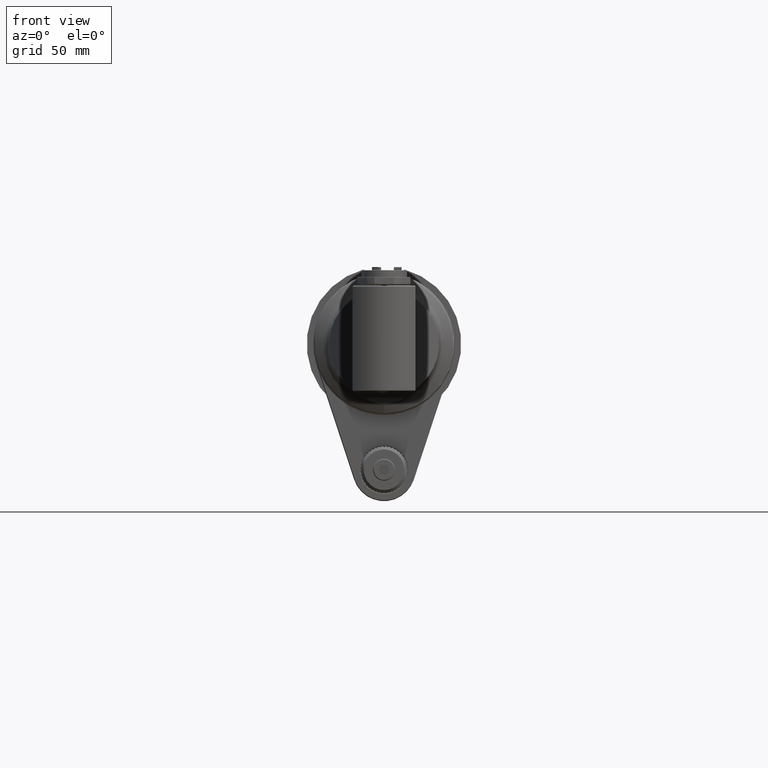
[diagram: clean part render]
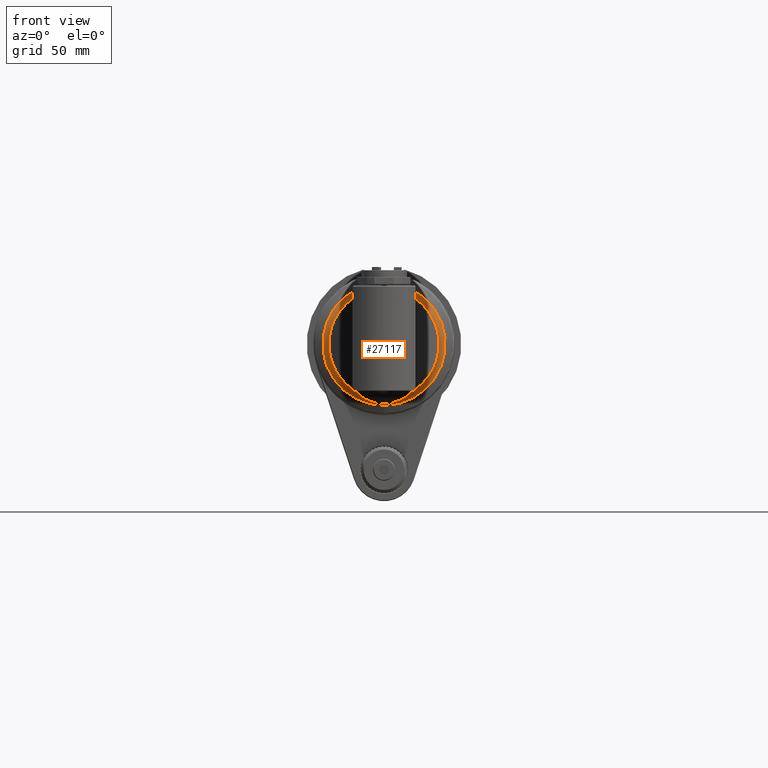
[diagram: same view with one face highlighted and labeled with its STEP entity id]
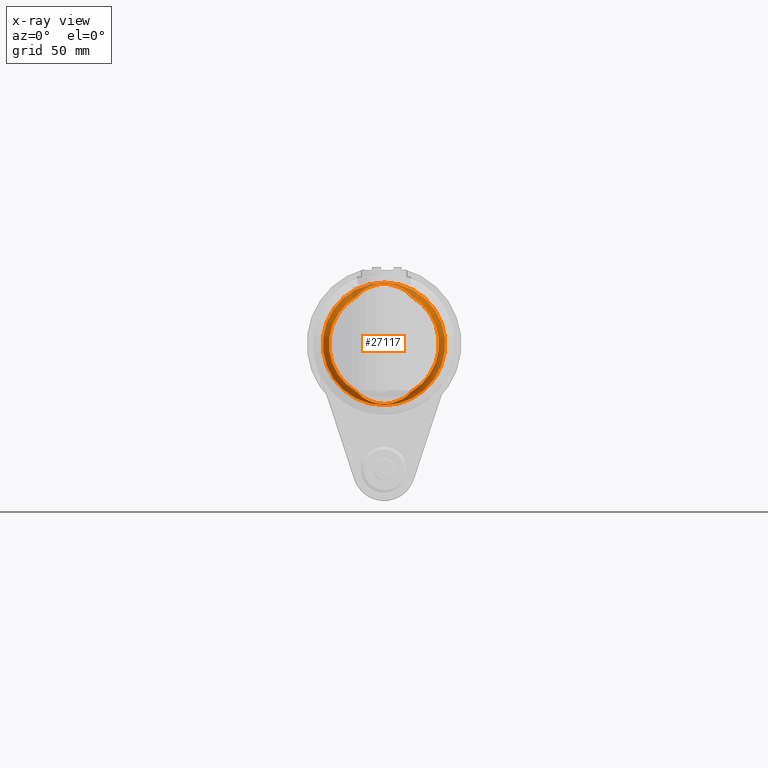
[diagram: x-ray of the same camera — body ghosted, the highlighted face saturated]
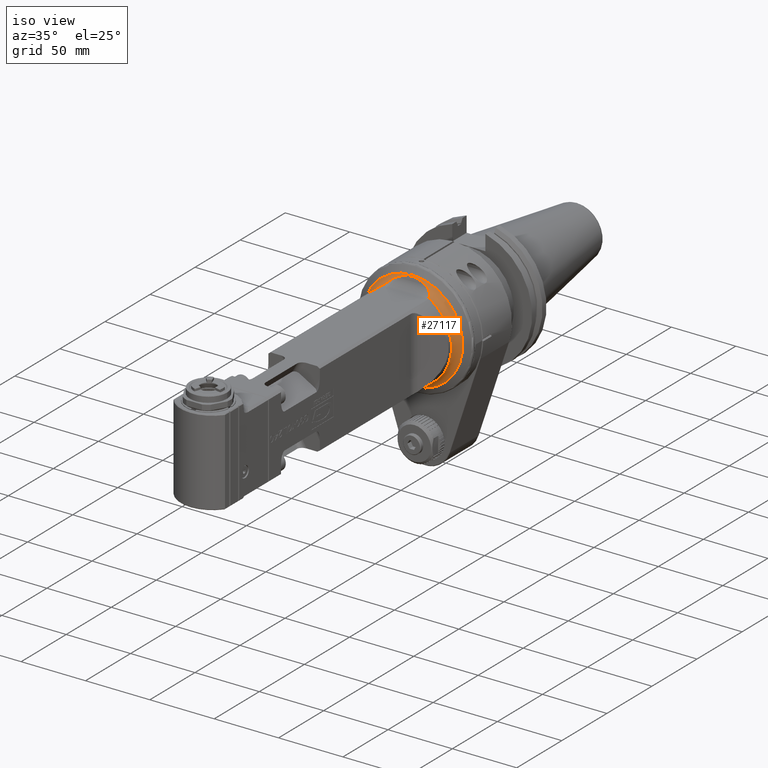
[diagram: same view with one face highlighted and labeled with its STEP entity id]
A machine part, front view. The second image highlights one B-rep face of the part: STEP entity #27117.
The next image is the same camera in x-ray: the body ghosted, the highlighted face saturated — about 12% of this face is hidden behind the body in this view.
A second angle (iso view) of the same face is appended — the face is thin or edge-on in the first view.
In plain terms, the highlighted toroidal blend (fillet) surface has major radius 43 mm and minor (blend) radius 8 mm.
Its self-contained STEP definition (entity closure, byte-faithful):
#110=TOROIDAL_SURFACE('',#29246,43.,8.);
#1206=CIRCLE('',#29244,39.);
#1207=CIRCLE('',#29245,39.);
#1208=CIRCLE('',#29247,8.);
#1209=CIRCLE('',#29248,35.);
#1210=CIRCLE('',#29249,35.);
#1723=B_SPLINE_CURVE_WITH_KNOTS('',3,(#43073,#43074,#43075,#43076,#43077,
#43078,#43079,#43080,#43081,#43082,#43083,#43084),.UNSPECIFIED.,.F.,.F.,
(4,2,2,2,2,4),(-13.7378022038327,-13.6980223017479,-13.2930273056113,-12.8880323094747,
-12.6407192186863,-12.5778600971058),.UNSPECIFIED.);
#1724=B_SPLINE_CURVE_WITH_KNOTS('',3,(#43087,#43088,#43089,#43090,#43091,
#43092,#43093,#43094,#43095,#43096),.UNSPECIFIED.,.F.,.F.,(4,2,2,2,4),(-14.8181845063887,
-14.7553253848095,-14.5080122940211,-14.1030172978845,-13.7378022038327),
 .UNSPECIFIED.);
#1725=B_SPLINE_CURVE_WITH_KNOTS('',3,(#43098,#43099,#43100,#43101,#43102,
#43103,#43104,#43105,#43106,#43107,#43108,#43109,#43110,#43111,#43112,#43113,
#43114,#43115,#43116,#43117,#43118,#43119,#43120,#43121,#43122,#43123,#43124,
#43125,#43126,#43127,#43128,#43129,#43130,#43131,#43132,#43133,#43134,#43135,
#43136,#43137,#43138,#43139,#43140,#43141,#43142,#43143,#43144,#43145,#43146,
#43147,#43148,#43149,#43150,#43151,#43152,#43153,#43154,#43155,#43156,#43157,
#43158,#43159,#43160,#43161,#43162,#43163,#43164,#43165,#43166,#43167,#43168,
#43169,#43170,#43171,#43172,#43173),.UNSPECIFIED.,.F.,.F.,(4,3,3,3,3,3,
3,3,3,3,3,3,3,3,3,3,3,3,3,3,3,3,3,3,3,4),(0.,0.04166666666667,0.08333333333333,
0.125,0.1666666666667,0.2083333333333,0.25,0.2916666666667,0.3333333333333,
0.375,0.4166666666667,0.4583333333333,0.5,0.5416666666667,0.5833333333333,
0.625,0.6666666666667,0.7083333333333,0.75,0.7916666666667,0.8333333333333,
0.875,0.9166666666667,0.95557840806874,0.9583333333333,1.),
 .UNSPECIFIED.);
#1726=B_SPLINE_CURVE_WITH_KNOTS('',3,(#43177,#43178,#43179,#43180,#43181,
#43182,#43183,#43184,#43185,#43186,#43187,#43188,#43189,#43190,#43191,#43192,
#43193,#43194,#43195,#43196,#43197,#43198,#43199,#43200,#43201,#43202,#43203,
#43204,#43205,#43206,#43207,#43208,#43209,#43210,#43211,#43212,#43213,#43214,
#43215,#43216,#43217,#43218,#43219,#43220,#43221,#43222,#43223,#43224,#43225,
#43226,#43227,#43228,#43229,#43230,#43231,#43232,#43233,#43234,#43235,#43236,
#43237,#43238,#43239,#43240,#43241,#43242,#43243,#43244,#43245,#43246,#43247,
#43248,#43249,#43250,#43251,#43252),.UNSPECIFIED.,.F.,.F.,(4,3,3,3,3,3,
3,3,3,3,3,3,3,3,3,3,3,3,3,3,3,3,3,3,3,4),(0.,0.04166666666667,0.0804342178607859,
0.08333333333333,0.125,0.1666666666667,0.2083333333333,0.25,0.2916666666667,
0.3333333333333,0.375,0.4166666666667,0.4583333333333,0.5,0.5416666666667,
0.5833333333333,0.625,0.6666666666667,0.7083333333333,0.75,0.7916666666667,
0.8333333333333,0.875,0.9166666666667,0.9583333333333,1.),.UNSPECIFIED.);
#1727=B_SPLINE_CURVE_WITH_KNOTS('',3,(#43254,#43255,#43256,#43257,#43258,
#43259,#43260,#43261,#43262,#43263,#43264,#43265,#43266,#43267,#43268,#43269,
#43270,#43271),.UNSPECIFIED.,.F.,.F.,(4,2,2,2,2,2,2,2,4),(12.5778600971084,
12.640719218692,12.8880323094802,13.2930273056156,13.698022301751,14.1030172978864,
14.5080122940217,14.75532538481,14.8181845063923),.UNSPECIFIED.);
#1728=B_SPLINE_CURVE_WITH_KNOTS('',3,(#43273,#43274,#43275,#43276,#43277,
#43278,#43279,#43280,#43281,#43282,#43283,#43284,#43285,#43286,#43287,#43288,
#43289,#43290,#43291,#43292,#43293,#43294,#43295,#43296,#43297,#43298,#43299,
#43300,#43301,#43302,#43303,#43304,#43305,#43306,#43307,#43308,#43309,#43310,
#43311,#43312,#43313,#43314,#43315,#43316,#43317,#43318,#43319,#43320,#43321,
#43322,#43323,#43324,#43325,#43326,#43327,#43328,#43329,#43330,#43331,#43332,
#43333,#43334,#43335,#43336,#43337,#43338,#43339,#43340,#43341,#43342,#43343,
#43344,#43345,#43346,#43347,#43348,#43349,#43350,#43351),.UNSPECIFIED.,
 .F.,.F.,(4,3,3,3,3,3,3,3,3,3,3,3,3,3,3,3,3,3,3,3,3,3,3,3,3,3,4),(0.,0.04166666666667,
0.08333333333333,0.125,0.1666666666667,0.2083333333333,0.25,0.2916666666667,
0.3333333333333,0.375,0.4166666666667,0.4583333333333,0.5,0.5416666666667,
0.5833333333333,0.625,0.6666666666667,0.7083333333333,0.75,0.789126732267477,
0.7916666666667,0.8333333333333,0.875,0.9166666666667,0.954957464717606,
0.9583333333333,1.),.UNSPECIFIED.);
#1729=B_SPLINE_CURVE_WITH_KNOTS('',3,(#43354,#43355,#43356,#43357,#43358,
#43359,#43360,#43361,#43362,#43363,#43364,#43365,#43366,#43367,#43368,#43369,
#43370,#43371,#43372,#43373,#43374,#43375,#43376,#43377,#43378,#43379,#43380,
#43381,#43382,#43383,#43384,#43385,#43386,#43387,#43388,#43389,#43390,#43391,
#43392,#43393,#43394,#43395,#43396,#43397,#43398,#43399,#43400,#43401,#43402,
#43403,#43404,#43405,#43406,#43407,#43408,#43409,#43410,#43411,#43412,#43413,
#43414,#43415,#43416,#43417,#43418,#43419,#43420,#43421,#43422,#43423,#43424,
#43425,#43426,#43427,#43428,#43429),.UNSPECIFIED.,.F.,.F.,(4,3,3,3,3,3,
3,3,3,3,3,3,3,3,3,3,3,3,3,3,3,3,3,3,3,4),(0.,0.04166666666667,0.0805791188444732,
0.08333333333333,0.125,0.1666666666667,0.2083333333333,0.25,0.2916666666667,
0.3333333333333,0.375,0.4166666666667,0.4583333333333,0.5,0.5416666666667,
0.5833333333333,0.625,0.6666666666667,0.7083333333333,0.75,0.7916666666667,
0.8333333333333,0.875,0.9166666666667,0.9583333333333,1.),.UNSPECIFIED.);
#2736=FACE_OUTER_BOUND('',#4355,.T.);
#4355=EDGE_LOOP('',(#20257,#20258,#20259,#20260,#20261,#20262,#20263,#20264,
#20265,#20266,#20267,#20268,#20269));
#11665=VERTEX_POINT('',#43065);
#11666=VERTEX_POINT('',#43067);
#11667=VERTEX_POINT('',#43071);
#11668=VERTEX_POINT('',#43072);
#11669=VERTEX_POINT('',#43086);
#11670=VERTEX_POINT('',#43097);
#11671=VERTEX_POINT('',#43174);
#11672=VERTEX_POINT('',#43176);
#11673=VERTEX_POINT('',#43253);
#11674=VERTEX_POINT('',#43272);
#11675=VERTEX_POINT('',#43352);
#14808=EDGE_CURVE('',#11666,#11665,#1206,.T.);
#14809=EDGE_CURVE('',#11665,#11666,#1207,.T.);
#14810=EDGE_CURVE('',#11667,#11668,#1723,.F.);
#14811=EDGE_CURVE('',#11668,#11666,#1208,.T.);
#14812=EDGE_CURVE('',#11668,#11669,#1724,.F.);
#14813=EDGE_CURVE('',#11669,#11670,#1725,.T.);
#14814=EDGE_CURVE('',#11671,#11670,#1209,.T.);
#14815=EDGE_CURVE('',#11671,#11672,#1726,.T.);
#14816=EDGE_CURVE('',#11672,#11673,#1727,.T.);
#14817=EDGE_CURVE('',#11673,#11674,#1728,.T.);
#14818=EDGE_CURVE('',#11675,#11674,#1210,.T.);
#14819=EDGE_CURVE('',#11675,#11667,#1729,.T.);
#20257=ORIENTED_EDGE('',*,*,#14810,.T.);
#20258=ORIENTED_EDGE('',*,*,#14811,.T.);
#20259=ORIENTED_EDGE('',*,*,#14808,.T.);
#20260=ORIENTED_EDGE('',*,*,#14809,.T.);
#20261=ORIENTED_EDGE('',*,*,#14811,.F.);
#20262=ORIENTED_EDGE('',*,*,#14812,.T.);
#20263=ORIENTED_EDGE('',*,*,#14813,.T.);
#20264=ORIENTED_EDGE('',*,*,#14814,.F.);
#20265=ORIENTED_EDGE('',*,*,#14815,.T.);
#20266=ORIENTED_EDGE('',*,*,#14816,.T.);
#20267=ORIENTED_EDGE('',*,*,#14817,.T.);
#20268=ORIENTED_EDGE('',*,*,#14818,.F.);
#20269=ORIENTED_EDGE('',*,*,#14819,.T.);
#27117=ADVANCED_FACE('',(#2736),#110,.F.);
#29244=AXIS2_PLACEMENT_3D('',#43068,#33656,#33657);
#29245=AXIS2_PLACEMENT_3D('',#43069,#33658,#33659);
#29246=AXIS2_PLACEMENT_3D('',#43070,#33660,#33661);
#29247=AXIS2_PLACEMENT_3D('',#43085,#33662,#33663);
#29248=AXIS2_PLACEMENT_3D('',#43175,#33664,#33665);
#29249=AXIS2_PLACEMENT_3D('',#43353,#33666,#33667);
#33656=DIRECTION('center_axis',(0.,1.,0.));
#33657=DIRECTION('ref_axis',(-1.,0.,0.));
#33658=DIRECTION('center_axis',(0.,1.,0.));
#33659=DIRECTION('ref_axis',(-1.,0.,0.));
#33660=DIRECTION('center_axis',(0.,1.,0.));
#33661=DIRECTION('ref_axis',(0.999945003641186,0.,0.0104875971046199));
#33662=DIRECTION('center_axis',(0.0104875971046197,0.,-0.999945003641186));
#33663=DIRECTION('ref_axis',(-0.999945003641186,0.,-0.0104875971046197));
#33664=DIRECTION('center_axis',(0.,1.,0.));
#33665=DIRECTION('ref_axis',(0.865703462490004,0.,-0.500557204555902));
#33666=DIRECTION('center_axis',(0.,1.,0.));
#33667=DIRECTION('ref_axis',(-0.865703462490004,0.,0.500557204555902));
#43065=CARTESIAN_POINT('',(38.9999999999974,38.4641016151356,4.77612251667436E-15));
#43067=CARTESIAN_POINT('',(-38.9978551420063,38.46410161514,-0.409016287080169));
#43068=CARTESIAN_POINT('Origin',(0.,38.46410161514,0.));
#43069=CARTESIAN_POINT('Origin',(0.,38.46410161514,0.));
#43070=CARTESIAN_POINT('Origin',(0.,45.39230484541,0.));
#43071=CARTESIAN_POINT('',(-35.26383885339,40.04367285338,11.36788069341));
#43072=CARTESIAN_POINT('',(-38.2413415089381,38.9599505143173,-0.401081840526887));
#43073=CARTESIAN_POINT('Ctrl Pts',(-38.2413415089381,38.9599505143173,-0.401081840527046));
#43074=CARTESIAN_POINT('Ctrl Pts',(-38.2441246155634,38.9589375463469,-0.266341423830267));
#43075=CARTESIAN_POINT('Ctrl Pts',(-38.2454847436221,38.9584425002188,-0.132599673616175));
#43076=CARTESIAN_POINT('Ctrl Pts',(-38.2454847436221,38.9584425002188,1.34998332045535));
#43077=CARTESIAN_POINT('Ctrl Pts',(-38.0909820629314,39.0146768771045,2.81798982273538));
#43078=CARTESIAN_POINT('Ctrl Pts',(-37.4896495701843,39.2335440053616,5.69207543368899));
#43079=CARTESIAN_POINT('Ctrl Pts',(-37.0504436962752,39.3934018701794,7.09995497122563));
#43080=CARTESIAN_POINT('Ctrl Pts',(-36.2869596295705,39.6712873447964,9.11681253003508));
#43081=CARTESIAN_POINT('Ctrl Pts',(-35.9382018007334,39.7982248134605,9.9435818588829));
#43082=CARTESIAN_POINT('Ctrl Pts',(-35.4619060514545,39.9715822889055,10.9600495702855));
#43083=CARTESIAN_POINT('Ctrl Pts',(-35.3634834504906,40.0074051860354,11.1650514609152));
#43084=CARTESIAN_POINT('Ctrl Pts',(-35.2638388533836,40.0436728533878,11.3678806934175));
#43085=CARTESIAN_POINT('Origin',(-42.997635156571,45.39230484541,-0.450966675498648));
#43086=CARTESIAN_POINT('',(-35.26383885339,40.04367285338,-11.36788069341));
#43087=CARTESIAN_POINT('Ctrl Pts',(-35.2638388533896,40.0436728533856,-11.3678806934053));
#43088=CARTESIAN_POINT('Ctrl Pts',(-35.3634834504946,40.007405186034,-11.165051460907));
#43089=CARTESIAN_POINT('Ctrl Pts',(-35.4619060514564,39.9715822889048,-10.9600495702814));
#43090=CARTESIAN_POINT('Ctrl Pts',(-35.9382018007334,39.7982248134605,-9.9435818588829));
#43091=CARTESIAN_POINT('Ctrl Pts',(-36.2869596295705,39.6712873447964,-9.11681253003508));
#43092=CARTESIAN_POINT('Ctrl Pts',(-37.0504436962752,39.3934018701794,-7.09995497122563));
#43093=CARTESIAN_POINT('Ctrl Pts',(-37.4896495701843,39.2335440053616,-5.69207543368899));
#43094=CARTESIAN_POINT('Ctrl Pts',(-38.061449663877,39.0254257913068,-2.95914075704057));
#43095=CARTESIAN_POINT('Ctrl Pts',(-38.2157900999439,38.9692504666347,-1.63811942426772));
#43096=CARTESIAN_POINT('Ctrl Pts',(-38.2413415089381,38.9599505143173,-0.401081840527046));
#43097=CARTESIAN_POINT('',(-30.29962118715,45.39230484541,-17.51950215946));
#43098=CARTESIAN_POINT('Ctrl Pts',(-35.2638388533917,40.0436728533816,-11.3678806934105));
#43099=CARTESIAN_POINT('Ctrl Pts',(-35.18904577304,40.07089530836,-11.52012400137));
#43100=CARTESIAN_POINT('Ctrl Pts',(-35.1138103405742,40.0995480447008,-11.6669347504388));
#43101=CARTESIAN_POINT('Ctrl Pts',(-35.0385230093969,40.1295481898045,-11.808283002059));
#43102=CARTESIAN_POINT('Ctrl Pts',(-34.9632356782196,40.1595483349081,-11.9496312536792));
#43103=CARTESIAN_POINT('Ctrl Pts',(-34.8878975485239,40.1908969065948,-12.0855173765078));
#43104=CARTESIAN_POINT('Ctrl Pts',(-34.8125372282882,40.2236337636182,-12.2165789244799));
#43105=CARTESIAN_POINT('Ctrl Pts',(-34.7371769080525,40.2563706206415,-12.347640472452));
#43106=CARTESIAN_POINT('Ctrl Pts',(-34.6617940365719,40.2904954488441,-12.4738773137666));
#43107=CARTESIAN_POINT('Ctrl Pts',(-34.5863538669918,40.3260897655436,-12.5959111226894));
#43108=CARTESIAN_POINT('Ctrl Pts',(-34.5109136974117,40.3616840822431,-12.7179449316123));
#43109=CARTESIAN_POINT('Ctrl Pts',(-34.4354158077517,40.398747516227,-12.8357755563637));
#43110=CARTESIAN_POINT('Ctrl Pts',(-34.3599050800852,40.4373308213293,-12.9498199062475));
#43111=CARTESIAN_POINT('Ctrl Pts',(-34.284394352419,40.4759141264315,-13.063864256131));
#43112=CARTESIAN_POINT('Ctrl Pts',(-34.2088705765836,40.5160171268097,-13.1741222514495));
#43113=CARTESIAN_POINT('Ctrl Pts',(-34.1332670345877,40.5577592310929,-13.2811152319705));
#43114=CARTESIAN_POINT('Ctrl Pts',(-34.0576634925917,40.5995013353762,-13.3881082124917));
#43115=CARTESIAN_POINT('Ctrl Pts',(-33.9819797509665,40.6428821902793,-13.4918360097537));
#43116=CARTESIAN_POINT('Ctrl Pts',(-33.9061494859549,40.688049485195,-13.5927427546316));
#43117=CARTESIAN_POINT('Ctrl Pts',(-33.8303192209434,40.7332167801106,-13.6936494995096));
#43118=CARTESIAN_POINT('Ctrl Pts',(-33.7543423049891,40.7801704133908,-13.7917351415805));
#43119=CARTESIAN_POINT('Ctrl Pts',(-33.6782976927495,40.8289861669899,-13.8872222156984));
#43120=CARTESIAN_POINT('Ctrl Pts',(-33.60225308051,40.8778019205888,-13.9827092898161));
#43121=CARTESIAN_POINT('Ctrl Pts',(-33.526140463779,40.9284795672352,-14.0755976674669));
#43122=CARTESIAN_POINT('Ctrl Pts',(-33.449937698067,40.9811733145871,-14.1662235334725));
#43123=CARTESIAN_POINT('Ctrl Pts',(-33.3737349323549,41.0338670619392,-14.2568493994783));
#43124=CARTESIAN_POINT('Ctrl Pts',(-33.2974416034183,41.0885766070035,-14.3452125802106));
#43125=CARTESIAN_POINT('Ctrl Pts',(-33.2210269056098,41.1454974790654,-14.4316293900542));
#43126=CARTESIAN_POINT('Ctrl Pts',(-33.1446122078013,41.2024183511273,-14.5180461998978));
#43127=CARTESIAN_POINT('Ctrl Pts',(-33.0680763840251,41.2615507154982,-14.6025167446197));
#43128=CARTESIAN_POINT('Ctrl Pts',(-32.9915486757508,41.322991690518,-14.6851783660315));
#43129=CARTESIAN_POINT('Ctrl Pts',(-32.9150209674766,41.3844326655377,-14.7678399874432));
#43130=CARTESIAN_POINT('Ctrl Pts',(-32.8385009515276,41.4481819870382,-14.84869249446));
#43131=CARTESIAN_POINT('Ctrl Pts',(-32.7620461401956,41.5144097578074,-14.9279659805876));
#43132=CARTESIAN_POINT('Ctrl Pts',(-32.6855913288634,41.5806375285767,-15.0072394667154));
#43133=CARTESIAN_POINT('Ctrl Pts',(-32.6092013822321,41.6493435252295,-15.0849337814687));
#43134=CARTESIAN_POINT('Ctrl Pts',(-32.5329448485884,41.7207251439324,-15.1612722950043));
#43135=CARTESIAN_POINT('Ctrl Pts',(-32.4566883149448,41.7921067626354,-15.2376108085398));
#43136=CARTESIAN_POINT('Ctrl Pts',(-32.3805661414724,41.8661645459113,-15.312593961655));
#43137=CARTESIAN_POINT('Ctrl Pts',(-32.3048299753274,41.942936646898,-15.3862896405833));
#43138=CARTESIAN_POINT('Ctrl Pts',(-32.2290938091826,42.0197087478846,-15.4599853195113));
#43139=CARTESIAN_POINT('Ctrl Pts',(-32.1537431436275,42.0991949122542,-15.5323932794006));
#43140=CARTESIAN_POINT('Ctrl Pts',(-32.0789570286577,42.1815065663386,-15.6036850232953));
#43141=CARTESIAN_POINT('Ctrl Pts',(-32.0041709136878,42.2638182204232,-15.6749767671902));
#43142=CARTESIAN_POINT('Ctrl Pts',(-31.9299496064713,42.3489554577522,-15.7451524275928));
#43143=CARTESIAN_POINT('Ctrl Pts',(-31.8565235239857,42.4369873620788,-15.814358291392));
#43144=CARTESIAN_POINT('Ctrl Pts',(-31.7830974415,42.5250192664054,-15.8835641551912));
#43145=CARTESIAN_POINT('Ctrl Pts',(-31.7104684821179,42.6159466895156,-15.9518011627567));
#43146=CARTESIAN_POINT('Ctrl Pts',(-31.6390206473186,42.7096221556081,-16.0191007408212));
#43147=CARTESIAN_POINT('Ctrl Pts',(-31.5675728125196,42.8032976217003,-16.0864003188855));
#43148=CARTESIAN_POINT('Ctrl Pts',(-31.4973056661358,42.8997209841853,-16.152762240602));
#43149=CARTESIAN_POINT('Ctrl Pts',(-31.4285145229428,42.9988045192172,-16.2183209197753));
#43150=CARTESIAN_POINT('Ctrl Pts',(-31.3597233797496,43.0978880542494,-16.2838795989487));
#43151=CARTESIAN_POINT('Ctrl Pts',(-31.2924083282056,43.1996317538774,-16.3486350892282));
#43152=CARTESIAN_POINT('Ctrl Pts',(-31.2268467134278,43.3039383344998,-16.4127449779664));
#43153=CARTESIAN_POINT('Ctrl Pts',(-31.1612850986499,43.4082449151222,-16.4768548667046));
#43154=CARTESIAN_POINT('Ctrl Pts',(-31.097479342711,43.5151151101965,-16.5403204282198));
#43155=CARTESIAN_POINT('Ctrl Pts',(-31.035799273906,43.624221535363,-16.6032011585323));
#43156=CARTESIAN_POINT('Ctrl Pts',(-30.9741192051011,43.7333279605292,-16.6660818888446));
#43157=CARTESIAN_POINT('Ctrl Pts',(-30.914564934549,43.8446707106897,-16.7283778348886));
#43158=CARTESIAN_POINT('Ctrl Pts',(-30.8574316389797,43.9579212686633,-16.7901941868355));
#43159=CARTESIAN_POINT('Ctrl Pts',(-30.8002983434102,44.0711718266372,-16.8520105387825));
#43160=CARTESIAN_POINT('Ctrl Pts',(-30.7455839225764,44.1863297186771,-16.9133461605231));
#43161=CARTESIAN_POINT('Ctrl Pts',(-30.6934499537132,44.3032502807217,-16.9744179914082));
#43162=CARTESIAN_POINT('Ctrl Pts',(-30.64131598485,44.4201708427662,-17.0354898222934));
#43163=CARTESIAN_POINT('Ctrl Pts',(-30.5917652832135,44.5388544635792,-17.0962994285284));
#43164=CARTESIAN_POINT('Ctrl Pts',(-30.5450260671308,44.6589106548984,-17.1569417642404));
#43165=CARTESIAN_POINT('Ctrl Pts',(-30.5013771641817,44.7710289461861,-17.2135745374863));
#43166=CARTESIAN_POINT('Ctrl Pts',(-30.4601805666482,44.8843443313574,-17.2700615899841));
#43167=CARTESIAN_POINT('Ctrl Pts',(-30.421584728575,44.9984769070792,-17.3264610566366));
#43168=CARTESIAN_POINT('Ctrl Pts',(-30.4188521690548,45.006557417101,-17.330454101152));
#43169=CARTESIAN_POINT('Ctrl Pts',(-30.4161326275239,45.0146420182391,-17.3344466963631));
#43170=CARTESIAN_POINT('Ctrl Pts',(-30.4134261482071,45.0227305734612,-17.3384388581298));
#43171=CARTESIAN_POINT('Ctrl Pts',(-30.3724921987516,45.1450653382521,-17.3988180182302));
#43172=CARTESIAN_POINT('Ctrl Pts',(-30.3345471097371,45.26830571151,-17.4590984896283));
#43173=CARTESIAN_POINT('Ctrl Pts',(-30.2996211871486,45.39230484541,-17.5195021594592));
#43174=CARTESIAN_POINT('',(30.29962118715,45.39230484541,-17.51950215946));
#43175=CARTESIAN_POINT('Origin',(0.,45.39230484541,0.));
#43176=CARTESIAN_POINT('',(35.26383885339,40.04367285338,-11.36788069341));
#43177=CARTESIAN_POINT('Ctrl Pts',(30.2996211871509,45.3923048454102,-17.51950215946));
#43178=CARTESIAN_POINT('Ctrl Pts',(30.3345527138843,45.2682858148512,-17.45908879737));
#43179=CARTESIAN_POINT('Ctrl Pts',(30.372500185549,45.1450428455582,-17.398806152005));
#43180=CARTESIAN_POINT('Ctrl Pts',(30.4134266024378,45.0227292159348,-17.3384381881242));
#43181=CARTESIAN_POINT('Ctrl Pts',(30.451505409524,44.9089260183788,-17.2822705529985));
#43182=CARTESIAN_POINT('Ctrl Pts',(30.4921665983406,44.7959284468445,-17.2260290590276));
#43183=CARTESIAN_POINT('Ctrl Pts',(30.535271825354,44.6840914241773,-17.1696485203548));
#43184=CARTESIAN_POINT('Ctrl Pts',(30.538495320951,44.6757280266236,-17.1654322702441));
#43185=CARTESIAN_POINT('Ctrl Pts',(30.5417324619663,44.6673711104625,-17.1612152425467));
#43186=CARTESIAN_POINT('Ctrl Pts',(30.5449831796961,44.6590208197155,-17.1569974100017));
#43187=CARTESIAN_POINT('Ctrl Pts',(30.5917031442358,44.5390087731378,-17.0963778781567));
#43188=CARTESIAN_POINT('Ctrl Pts',(30.6412314109162,44.4203667838004,-17.0355920968634));
#43189=CARTESIAN_POINT('Ctrl Pts',(30.6933739950308,44.3034206366229,-16.97450697486));
#43190=CARTESIAN_POINT('Ctrl Pts',(30.7455165791456,44.1864744894452,-16.9134218528567));
#43191=CARTESIAN_POINT('Ctrl Pts',(30.8002740339954,44.0712244280623,-16.8520373901433));
#43192=CARTESIAN_POINT('Ctrl Pts',(30.8573878631008,43.9580080440001,-16.7902415510299));
#43193=CARTESIAN_POINT('Ctrl Pts',(30.9145016922062,43.8447916599382,-16.7284457119166));
#43194=CARTESIAN_POINT('Ctrl Pts',(30.9739696734227,43.7336078444873,-16.6662384964034));
#43195=CARTESIAN_POINT('Ctrl Pts',(31.0355665695413,43.6246331977711,-16.6034383996435));
#43196=CARTESIAN_POINT('Ctrl Pts',(31.0971634656602,43.5156585510546,-16.5406383028834));
#43197=CARTESIAN_POINT('Ctrl Pts',(31.1608914550911,43.4088943604792,-16.4772453248767));
#43198=CARTESIAN_POINT('Ctrl Pts',(31.2264089464964,43.3046348834942,-16.4131730700833));
#43199=CARTESIAN_POINT('Ctrl Pts',(31.2919264379017,43.2003754065092,-16.34910081529));
#43200=CARTESIAN_POINT('Ctrl Pts',(31.359233204749,43.0986203797158,-16.2843492837099));
#43201=CARTESIAN_POINT('Ctrl Pts',(31.427950753558,42.9996166539461,-16.2188582109815));
#43202=CARTESIAN_POINT('Ctrl Pts',(31.4966683023668,42.9006129281766,-16.1533671382533));
#43203=CARTESIAN_POINT('Ctrl Pts',(31.5667928291385,42.8043579030815,-16.0871365243767));
#43204=CARTESIAN_POINT('Ctrl Pts',(31.6381011161353,42.7108280008427,-16.0199668874052));
#43205=CARTESIAN_POINT('Ctrl Pts',(31.7094094031323,42.6172980986036,-15.9527972504334));
#43206=CARTESIAN_POINT('Ctrl Pts',(31.7819027894927,42.5264944154799,-15.8846885903667));
#43207=CARTESIAN_POINT('Ctrl Pts',(31.8552839104644,42.4384739103048,-15.81552664851));
#43208=CARTESIAN_POINT('Ctrl Pts',(31.9286650314361,42.3504534051297,-15.7463647066533));
#43209=CARTESIAN_POINT('Ctrl Pts',(32.0029342273449,42.2652163003686,-15.6761494830066));
#43210=CARTESIAN_POINT('Ctrl Pts',(32.0777608299753,42.1828234272733,-15.6048252830515));
#43211=CARTESIAN_POINT('Ctrl Pts',(32.1525874326056,42.1004305541781,-15.5335010830966));
#43212=CARTESIAN_POINT('Ctrl Pts',(32.2279699523802,42.0208805182258,-15.4610679068334));
#43213=CARTESIAN_POINT('Ctrl Pts',(32.3036705628265,41.9441121699585,-15.3874177348552));
#43214=CARTESIAN_POINT('Ctrl Pts',(32.3793711732731,41.8673438216911,-15.3137675628768));
#43215=CARTESIAN_POINT('Ctrl Pts',(32.4553879560294,41.7933553282781,-15.2389003951834));
#43216=CARTESIAN_POINT('Ctrl Pts',(32.5316426124992,41.7219443891192,-15.1625758299917));
#43217=CARTESIAN_POINT('Ctrl Pts',(32.6078972689689,41.6505334499603,-15.0862512647999));
#43218=CARTESIAN_POINT('Ctrl Pts',(32.6843912190177,41.5817016237133,-15.0084693021099));
#43219=CARTESIAN_POINT('Ctrl Pts',(32.7609510543669,41.5153585331732,-14.9291013344865));
#43220=CARTESIAN_POINT('Ctrl Pts',(32.837510889716,41.4490154426333,-14.8497333668633));
#43221=CARTESIAN_POINT('Ctrl Pts',(32.9141364568191,41.3851608173178,-14.7687793943067));
#43222=CARTESIAN_POINT('Ctrl Pts',(32.9906839565823,41.3236860420037,-14.6861123108502));
#43223=CARTESIAN_POINT('Ctrl Pts',(33.0672314563458,41.2622112666895,-14.6034452273935));
#43224=CARTESIAN_POINT('Ctrl Pts',(33.1436991192438,41.2031141854614,-14.5190650330367));
#43225=CARTESIAN_POINT('Ctrl Pts',(33.2201484636459,41.146151911129,-14.4326227341067));
#43226=CARTESIAN_POINT('Ctrl Pts',(33.296597808048,41.0891896367966,-14.3461804351766));
#43227=CARTESIAN_POINT('Ctrl Pts',(33.3730301550858,41.0343639967873,-14.2576760316732));
#43228=CARTESIAN_POINT('Ctrl Pts',(33.4493839386778,40.9815562706454,-14.1668820619765));
#43229=CARTESIAN_POINT('Ctrl Pts',(33.5257377222695,40.9287485445037,-14.0760880922799));
#43230=CARTESIAN_POINT('Ctrl Pts',(33.6020132662059,40.8779591327835,-13.9830045563901));
#43231=CARTESIAN_POINT('Ctrl Pts',(33.6781250893378,40.8290969715613,-13.8874389422352));
#43232=CARTESIAN_POINT('Ctrl Pts',(33.75423691247,40.780234810339,-13.7918733280802));
#43233=CARTESIAN_POINT('Ctrl Pts',(33.8301842451049,40.7332986888694,-13.6938256356601));
#43234=CARTESIAN_POINT('Ctrl Pts',(33.9060048391108,40.6881356430001,-13.592935233825));
#43235=CARTESIAN_POINT('Ctrl Pts',(33.9818254331166,40.6429725971309,-13.4920448319899));
#43236=CARTESIAN_POINT('Ctrl Pts',(34.0575190128041,40.5995822191204,-13.3883117207398));
#43237=CARTESIAN_POINT('Ctrl Pts',(34.1331858041143,40.5578040805146,-13.2812301868614));
#43238=CARTESIAN_POINT('Ctrl Pts',(34.2088525954243,40.5160259419089,-13.1741486529832));
#43239=CARTESIAN_POINT('Ctrl Pts',(34.2844934673284,40.4758616172726,-13.0637186964768));
#43240=CARTESIAN_POINT('Ctrl Pts',(34.3600788707457,40.4372420220835,-12.9495574246969));
#43241=CARTESIAN_POINT('Ctrl Pts',(34.4356642741632,40.3986224268942,-12.8353961529169));
#43242=CARTESIAN_POINT('Ctrl Pts',(34.5111941385292,40.3615473819011,-12.7175035658634));
#43243=CARTESIAN_POINT('Ctrl Pts',(34.5866629924243,40.3259439233417,-12.595411045575));
#43244=CARTESIAN_POINT('Ctrl Pts',(34.6621318463193,40.2903404647824,-12.4733185252866));
#43245=CARTESIAN_POINT('Ctrl Pts',(34.7375395767737,40.2562083740206,-12.3470260717631));
#43246=CARTESIAN_POINT('Ctrl Pts',(34.8129110763181,40.223471374439,-12.2159287115097));
#43247=CARTESIAN_POINT('Ctrl Pts',(34.8882825758623,40.1907343748575,-12.0848313512566));
#43248=CARTESIAN_POINT('Ctrl Pts',(34.9636182795768,40.1593935288276,-11.9489290842734));
#43249=CARTESIAN_POINT('Ctrl Pts',(35.0388455239416,40.1294196776798,-11.8076774796895));
#43250=CARTESIAN_POINT('Ctrl Pts',(35.1140727683066,40.0994458265321,-11.6664258751052));
#43251=CARTESIAN_POINT('Ctrl Pts',(35.1891926973992,40.0708418322675,-11.51982493292));
#43252=CARTESIAN_POINT('Ctrl Pts',(35.2638388533914,40.0436728533839,-11.36788069341));
#43253=CARTESIAN_POINT('',(35.26383885339,40.04367285338,11.36788069341));
#43254=CARTESIAN_POINT('Ctrl Pts',(35.2638388533894,40.0436728533802,-11.3678806934217));
#43255=CARTESIAN_POINT('Ctrl Pts',(35.3634834505016,40.0074051860259,-11.1650514609094));
#43256=CARTESIAN_POINT('Ctrl Pts',(35.4619060514704,39.9715822888942,-10.9600495702693));
#43257=CARTESIAN_POINT('Ctrl Pts',(35.9382018007537,39.7982248134476,-9.94358185885663));
#43258=CARTESIAN_POINT('Ctrl Pts',(36.2869596295904,39.6712873447837,-9.11681253000929));
#43259=CARTESIAN_POINT('Ctrl Pts',(37.050443696293,39.3934018701674,-7.09995497120399));
#43260=CARTESIAN_POINT('Ctrl Pts',(37.4896495702007,39.2335440053501,-5.69207543367162));
#43261=CARTESIAN_POINT('Ctrl Pts',(38.0909820629463,39.0146768770936,-2.81798982272678));
#43262=CARTESIAN_POINT('Ctrl Pts',(38.2454847436367,38.9584425002079,-1.34998332045125));
#43263=CARTESIAN_POINT('Ctrl Pts',(38.2454847436367,38.9584425002079,1.34998332045125));
#43264=CARTESIAN_POINT('Ctrl Pts',(38.0909820629463,39.0146768770936,2.81798982272677));
#43265=CARTESIAN_POINT('Ctrl Pts',(37.4896495702007,39.2335440053501,5.69207543367161));
#43266=CARTESIAN_POINT('Ctrl Pts',(37.050443696293,39.3934018701674,7.09995497120399));
#43267=CARTESIAN_POINT('Ctrl Pts',(36.2869596295904,39.6712873447837,9.11681253000929));
#43268=CARTESIAN_POINT('Ctrl Pts',(35.9382018007537,39.7982248134476,9.94358185885663));
#43269=CARTESIAN_POINT('Ctrl Pts',(35.4619060514724,39.9715822888935,10.9600495702652));
#43270=CARTESIAN_POINT('Ctrl Pts',(35.3634834505055,40.0074051860245,11.1650514609012));
#43271=CARTESIAN_POINT('Ctrl Pts',(35.2638388533954,40.043672853378,11.3678806934095));
#43272=CARTESIAN_POINT('',(30.29962118715,45.39230484541,17.51950215946));
#43273=CARTESIAN_POINT('Ctrl Pts',(35.2638388533914,40.0436728533839,11.36788069341));
#43274=CARTESIAN_POINT('Ctrl Pts',(35.1891838521396,40.0708450516787,11.51984293769));
#43275=CARTESIAN_POINT('Ctrl Pts',(35.1140547226361,40.0994526932617,11.666461116095));
#43276=CARTESIAN_POINT('Ctrl Pts',(35.0388179453736,40.1294306662566,11.8077292612275));
#43277=CARTESIAN_POINT('Ctrl Pts',(34.9635811681112,40.1594086392516,11.94899740636));
#43278=CARTESIAN_POINT('Ctrl Pts',(34.8882355994496,40.1907540827896,12.08491551822));
#43279=CARTESIAN_POINT('Ctrl Pts',(34.8128540669454,40.223496136261,12.2160278698866));
#43280=CARTESIAN_POINT('Ctrl Pts',(34.7374725344413,40.2562381897323,12.3471402215533));
#43281=CARTESIAN_POINT('Ctrl Pts',(34.6620546028931,40.2903757905555,12.4734468130266));
#43282=CARTESIAN_POINT('Ctrl Pts',(34.5865755287769,40.3259851861536,12.5955525417849));
#43283=CARTESIAN_POINT('Ctrl Pts',(34.5110964546606,40.3615945817518,12.7176582705434));
#43284=CARTESIAN_POINT('Ctrl Pts',(34.435556350166,40.398675989111,12.8355631365868));
#43285=CARTESIAN_POINT('Ctrl Pts',(34.3599606739082,40.4373024147952,12.9497359425903));
#43286=CARTESIAN_POINT('Ctrl Pts',(34.2843649976506,40.4759288404793,13.0639087485934));
#43287=CARTESIAN_POINT('Ctrl Pts',(34.2087138209872,40.5161004650665,13.1743494945566));
#43288=CARTESIAN_POINT('Ctrl Pts',(34.1330368077146,40.5578863484239,13.2814410352631));
#43289=CARTESIAN_POINT('Ctrl Pts',(34.0573597944419,40.5996722317814,13.3885325759698));
#43290=CARTESIAN_POINT('Ctrl Pts',(33.9816560776152,40.6430708035063,13.4922749114199));
#43291=CARTESIAN_POINT('Ctrl Pts',(33.905825915416,40.6882422232555,13.5931733145333));
#43292=CARTESIAN_POINT('Ctrl Pts',(33.8299957532167,40.7334136430047,13.6940717176467));
#43293=CARTESIAN_POINT('Ctrl Pts',(33.7540394121357,40.7803583029408,13.7921261884235));
#43294=CARTESIAN_POINT('Ctrl Pts',(33.6779182426913,40.8292297671682,13.8876986535486));
#43295=CARTESIAN_POINT('Ctrl Pts',(33.6017970732471,40.8781012313953,13.9832711186734));
#43296=CARTESIAN_POINT('Ctrl Pts',(33.525511850302,40.928900718349,14.0763615781466));
#43297=CARTESIAN_POINT('Ctrl Pts',(33.4491479158426,40.9817195147769,14.1671627140214));
#43298=CARTESIAN_POINT('Ctrl Pts',(33.3727839813831,41.034538311205,14.2579638498965));
#43299=CARTESIAN_POINT('Ctrl Pts',(33.2963410106589,41.0893760154073,14.3464756621733));
#43300=CARTESIAN_POINT('Ctrl Pts',(33.2198803816505,41.1463516672718,14.4329258452583));
#43301=CARTESIAN_POINT('Ctrl Pts',(33.1434197526422,41.2033273191364,14.5193760283434));
#43302=CARTESIAN_POINT('Ctrl Pts',(33.0669401488699,41.2624390972054,14.6037645822368));
#43303=CARTESIAN_POINT('Ctrl Pts',(32.9903804286081,41.3239298153996,14.6864401016635));
#43304=CARTESIAN_POINT('Ctrl Pts',(32.9138207083464,41.3854205335937,14.7691156210901));
#43305=CARTESIAN_POINT('Ctrl Pts',(32.8371826530386,41.4492923626802,14.8500781060499));
#43306=CARTESIAN_POINT('Ctrl Pts',(32.7606114757049,41.5156528124942,14.9294533580381));
#43307=CARTESIAN_POINT('Ctrl Pts',(32.6840402983709,41.5820132623084,15.0088286100265));
#43308=CARTESIAN_POINT('Ctrl Pts',(32.6075361568784,41.6508626078382,15.0866166290433));
#43309=CARTESIAN_POINT('Ctrl Pts',(32.5312739528629,41.7222896532362,15.16294481434));
#43310=CARTESIAN_POINT('Ctrl Pts',(32.4550117488474,41.7937166986343,15.2392729996367));
#43311=CARTESIAN_POINT('Ctrl Pts',(32.3789900628118,41.8677198883853,15.3141413512135));
#43312=CARTESIAN_POINT('Ctrl Pts',(32.303288495315,41.9444996527937,15.3877894508218));
#43313=CARTESIAN_POINT('Ctrl Pts',(32.2275869278183,42.0212794172018,15.46143755043));
#43314=CARTESIAN_POINT('Ctrl Pts',(32.1522072964055,42.100837488322,15.5338653980699));
#43315=CARTESIAN_POINT('Ctrl Pts',(32.0773817357527,42.1832408840739,15.6051866288898));
#43316=CARTESIAN_POINT('Ctrl Pts',(32.0025561750996,42.265644279826,15.6765078597099));
#43317=CARTESIAN_POINT('Ctrl Pts',(31.9282861909661,42.3508944100134,15.74672247371));
#43318=CARTESIAN_POINT('Ctrl Pts',(31.8548990261997,42.4389356134615,15.8158894002617));
#43319=CARTESIAN_POINT('Ctrl Pts',(31.7815118614333,42.5269768169095,15.8850563268134));
#43320=CARTESIAN_POINT('Ctrl Pts',(31.7090071156842,42.6178088159656,15.9531755659168));
#43321=CARTESIAN_POINT('Ctrl Pts',(31.637676643841,42.7113848008619,16.0203667230352));
#43322=CARTESIAN_POINT('Ctrl Pts',(31.5663461719979,42.804960785758,16.0875578801534));
#43323=CARTESIAN_POINT('Ctrl Pts',(31.4961889708216,42.9012799138807,16.1538209552866));
#43324=CARTESIAN_POINT('Ctrl Pts',(31.427439784757,43.000352912231,16.2193452048682));
#43325=CARTESIAN_POINT('Ctrl Pts',(31.3586905986922,43.0994259105816,16.2848694544499));
#43326=CARTESIAN_POINT('Ctrl Pts',(31.2913533572869,43.2012554682311,16.3496548784799));
#43327=CARTESIAN_POINT('Ctrl Pts',(31.2258200106522,43.3055722144687,16.4137490404817));
#43328=CARTESIAN_POINT('Ctrl Pts',(31.1642814736515,43.4035299760938,16.4739361232788));
#43329=CARTESIAN_POINT('Ctrl Pts',(31.1043335178495,43.5036808830023,16.5335136518564));
#43330=CARTESIAN_POINT('Ctrl Pts',(31.0462723774832,43.6057527653999,16.592539179721));
#43331=CARTESIAN_POINT('Ctrl Pts',(31.0425033050581,43.6123788205359,16.596370855917));
#43332=CARTESIAN_POINT('Ctrl Pts',(31.0387421700278,43.6190129586503,16.6002002059642));
#43333=CARTESIAN_POINT('Ctrl Pts',(31.0349890476377,43.6256551003174,16.6040272456068));
#43334=CARTESIAN_POINT('Ctrl Pts',(30.9734204891595,43.7346169313307,16.6668083887567));
#43335=CARTESIAN_POINT('Ctrl Pts',(30.9140094773015,43.8457345931158,16.7289677750833));
#43336=CARTESIAN_POINT('Ctrl Pts',(30.8569663928579,43.9588436433502,16.7906976120149));
#43337=CARTESIAN_POINT('Ctrl Pts',(30.7999233084141,44.0719526935849,16.8524274489466));
#43338=CARTESIAN_POINT('Ctrl Pts',(30.7452491676427,44.1870535817513,16.9137277364833));
#43339=CARTESIAN_POINT('Ctrl Pts',(30.6931593051847,44.3039021888015,16.9747584990667));
#43340=CARTESIAN_POINT('Ctrl Pts',(30.6410694427267,44.4207507958518,17.0357892616501));
#43341=CARTESIAN_POINT('Ctrl Pts',(30.5915655924543,44.5393478885689,17.0965504992801));
#43342=CARTESIAN_POINT('Ctrl Pts',(30.5448667400505,44.6593199421489,17.1571484984218));
#43343=CARTESIAN_POINT('Ctrl Pts',(30.501951468212,44.7695717583579,17.21283679636));
#43344=CARTESIAN_POINT('Ctrl Pts',(30.4614051127542,44.8809848610065,17.2683872356918));
#43345=CARTESIAN_POINT('Ctrl Pts',(30.4233693377826,44.9932052900217,17.3238559104103));
#43346=CARTESIAN_POINT('Ctrl Pts',(30.4200159530129,45.0030990881046,17.3287462487597));
#43347=CARTESIAN_POINT('Ctrl Pts',(30.4166820513252,45.0129991496521,17.3336359515621));
#43348=CARTESIAN_POINT('Ctrl Pts',(30.4133677115077,45.0229052255062,17.3385250572582));
#43349=CARTESIAN_POINT('Ctrl Pts',(30.3724604641832,45.1451709910238,17.3988688562999));
#43350=CARTESIAN_POINT('Ctrl Pts',(30.3345336929283,45.2683533458395,17.45912169373));
#43351=CARTESIAN_POINT('Ctrl Pts',(30.2996211871509,45.3923048454102,17.51950215946));
#43352=CARTESIAN_POINT('',(-30.29962118715,45.39230484541,17.51950215946));
#43353=CARTESIAN_POINT('Origin',(0.,45.39230484541,0.));
#43354=CARTESIAN_POINT('Ctrl Pts',(-30.2996211871486,45.39230484541,17.5195021594592));
#43355=CARTESIAN_POINT('Ctrl Pts',(-30.3345471487999,45.26830557283,17.4590984220699));
#43356=CARTESIAN_POINT('Ctrl Pts',(-30.3724922781263,45.1450650831069,17.398817893139));
#43357=CARTESIAN_POINT('Ctrl Pts',(-30.4134262619781,45.022730233439,17.3384386903139));
#43358=CARTESIAN_POINT('Ctrl Pts',(-30.451654462516,44.908481857742,17.2820506220947));
#43359=CARTESIAN_POINT('Ctrl Pts',(-30.4924923434389,44.7950233622234,17.2255781603916));
#43360=CARTESIAN_POINT('Ctrl Pts',(-30.5357945828935,44.6827355344655,17.1689648905486));
#43361=CARTESIAN_POINT('Ctrl Pts',(-30.5388595055244,44.6747878276307,17.1649578162231));
#43362=CARTESIAN_POINT('Ctrl Pts',(-30.541936755691,44.6668459802414,17.1609500263768));
#43363=CARTESIAN_POINT('Ctrl Pts',(-30.5450262735151,44.6589101247701,17.1569414964651));
#43364=CARTESIAN_POINT('Ctrl Pts',(-30.5917655198071,44.5388538815197,17.0962991317076));
#43365=CARTESIAN_POINT('Ctrl Pts',(-30.6413162547341,44.4201702102356,17.0354894960646));
#43366=CARTESIAN_POINT('Ctrl Pts',(-30.6934502380504,44.3032496430473,16.9744176583221));
#43367=CARTESIAN_POINT('Ctrl Pts',(-30.7455842213668,44.1863290758589,16.9133458205795));
#43368=CARTESIAN_POINT('Ctrl Pts',(-30.8002986371743,44.0711712238729,16.8520102141821));
#43369=CARTESIAN_POINT('Ctrl Pts',(-30.8574319050524,43.9579207412406,16.790193898957));
#43370=CARTESIAN_POINT('Ctrl Pts',(-30.9145651729304,43.8446702586085,16.7283775837321));
#43371=CARTESIAN_POINT('Ctrl Pts',(-30.9741193919992,43.7333276188549,16.6660816951737));
#43372=CARTESIAN_POINT('Ctrl Pts',(-31.0357994494279,43.6242212248811,16.6032009795935));
#43373=CARTESIAN_POINT('Ctrl Pts',(-31.0974795068568,43.515114830907,16.5403202640131));
#43374=CARTESIAN_POINT('Ctrl Pts',(-31.161285292823,43.4082445882227,16.4768546751546));
#43375=CARTESIAN_POINT('Ctrl Pts',(-31.2268469987873,43.3039378805075,16.4127446989219));
#43376=CARTESIAN_POINT('Ctrl Pts',(-31.2924087047516,43.1996311727924,16.3486347226892));
#43377=CARTESIAN_POINT('Ctrl Pts',(-31.3597239117924,43.0978872674358,16.2838790864433));
#43378=CARTESIAN_POINT('Ctrl Pts',(-31.4285150414496,42.9988037723867,16.2183204256312));
#43379=CARTESIAN_POINT('Ctrl Pts',(-31.4973061711067,42.8997202773379,16.1527617648192));
#43380=CARTESIAN_POINT('Ctrl Pts',(-31.567573127874,42.8032971980495,16.0864000221568));
#43381=CARTESIAN_POINT('Ctrl Pts',(-31.6390208796201,42.7096218510363,16.0191005220078));
#43382=CARTESIAN_POINT('Ctrl Pts',(-31.7104686313663,42.6159465040229,15.9518010218586));
#43383=CARTESIAN_POINT('Ctrl Pts',(-31.7830976179687,42.525019037529,15.8835639929104));
#43384=CARTESIAN_POINT('Ctrl Pts',(-31.8565239144699,42.4369868939242,15.8143579233474));
#43385=CARTESIAN_POINT('Ctrl Pts',(-31.9299502109711,42.3489547503194,15.7451518537845));
#43386=CARTESIAN_POINT('Ctrl Pts',(-32.0041719232565,42.2638170795396,15.6749758053889));
#43387=CARTESIAN_POINT('Ctrl Pts',(-32.0789581659425,42.1815053146151,15.6036839391468));
#43388=CARTESIAN_POINT('Ctrl Pts',(-32.1537444086282,42.0991935496909,15.532392072905));
#43389=CARTESIAN_POINT('Ctrl Pts',(-32.2290949168858,42.01970759336,15.4599842525874));
#43390=CARTESIAN_POINT('Ctrl Pts',(-32.3048310597897,41.9429355475951,15.3862885853468));
#43391=CARTESIAN_POINT('Ctrl Pts',(-32.3805672026938,41.8661635018301,15.312592918106));
#43392=CARTESIAN_POINT('Ctrl Pts',(-32.4566894908868,41.7921056231604,15.2376096506211));
#43393=CARTESIAN_POINT('Ctrl Pts',(-32.5329463019698,41.7207237834782,15.1612708400416));
#43394=CARTESIAN_POINT('Ctrl Pts',(-32.6092031130528,41.6493419437961,15.084932029462));
#43395=CARTESIAN_POINT('Ctrl Pts',(-32.6855935019883,41.5806356016761,15.0072372360233));
#43396=CARTESIAN_POINT('Ctrl Pts',(-32.7620483892984,41.5144078095538,14.9279636485723));
#43397=CARTESIAN_POINT('Ctrl Pts',(-32.8385032766084,41.4481800174317,14.8486900611216));
#43398=CARTESIAN_POINT('Ctrl Pts',(-32.9150229972511,41.3844309956928,14.7678378278789));
#43399=CARTESIAN_POINT('Ctrl Pts',(-32.9915505477243,41.3229901875754,14.6851763440309));
#43400=CARTESIAN_POINT('Ctrl Pts',(-33.0680780981977,41.2615493794579,14.6025148601827));
#43401=CARTESIAN_POINT('Ctrl Pts',(-33.1446139045366,41.2024170510424,14.5180443180684));
#43402=CARTESIAN_POINT('Ctrl Pts',(-33.2210287254173,41.145496123516,14.4316273320246));
#43403=CARTESIAN_POINT('Ctrl Pts',(-33.297443546298,41.0885751959895,14.3452103459807));
#43404=CARTESIAN_POINT('Ctrl Pts',(-33.3737371393962,41.0338655043726,14.2568468105117));
#43405=CARTESIAN_POINT('Ctrl Pts',(-33.44993981019,40.9811718540648,14.1662210215864));
#43406=CARTESIAN_POINT('Ctrl Pts',(-33.5261424809836,40.9284782037571,14.0755952326612));
#43407=CARTESIAN_POINT('Ctrl Pts',(-33.6022546416484,40.8778008962858,13.982707363026));
#43408=CARTESIAN_POINT('Ctrl Pts',(-33.6782989366016,40.8289853685085,13.8872206538436));
#43409=CARTESIAN_POINT('Ctrl Pts',(-33.7543432315549,40.780169840731,13.791733944661));
#43410=CARTESIAN_POINT('Ctrl Pts',(-33.8303199704225,40.7332163210005,13.6936485250257));
#43411=CARTESIAN_POINT('Ctrl Pts',(-33.9061502194981,40.6880490482795,13.5927417784923));
#43412=CARTESIAN_POINT('Ctrl Pts',(-33.9819804685737,40.6428817755584,13.4918350319588));
#43413=CARTESIAN_POINT('Ctrl Pts',(-34.0576643550921,40.5995008512258,13.3881070088274));
#43414=CARTESIAN_POINT('Ctrl Pts',(-34.1332678296875,40.5577587921088,13.2811141067467));
#43415=CARTESIAN_POINT('Ctrl Pts',(-34.2088713042827,40.5160167329919,13.1741212046662));
#43416=CARTESIAN_POINT('Ctrl Pts',(-34.2843948003821,40.4759138923506,13.0638635920785));
#43417=CARTESIAN_POINT('Ctrl Pts',(-34.3599053217125,40.4373306978646,12.94981954132));
#43418=CARTESIAN_POINT('Ctrl Pts',(-34.4354158430432,40.3987475033784,12.8357754905613));
#43419=CARTESIAN_POINT('Ctrl Pts',(-34.5109135998907,40.3616841309902,12.7179450813771));
#43420=CARTESIAN_POINT('Ctrl Pts',(-34.5863536747893,40.3260898562244,12.5959114336114));
#43421=CARTESIAN_POINT('Ctrl Pts',(-34.661793749688,40.2904955814586,12.4738777858457));
#43422=CARTESIAN_POINT('Ctrl Pts',(-34.7371765644635,40.2563707753962,12.3476410512205));
#43423=CARTESIAN_POINT('Ctrl Pts',(-34.8125368320321,40.2236339357521,12.2165796136253));
#43424=CARTESIAN_POINT('Ctrl Pts',(-34.8878970996005,40.1908970961082,12.0855181760304));
#43425=CARTESIAN_POINT('Ctrl Pts',(-34.9632351810905,40.1595485374192,11.9496321674158));
#43426=CARTESIAN_POINT('Ctrl Pts',(-35.0385225704119,40.1295483647349,11.808283826216));
#43427=CARTESIAN_POINT('Ctrl Pts',(-35.1138099597335,40.0995481920505,11.6669354850159));
#43428=CARTESIAN_POINT('Ctrl Pts',(-35.1890455563475,40.0708953872276,11.5201244424592));
#43429=CARTESIAN_POINT('Ctrl Pts',(-35.2638388533917,40.0436728533816,11.3678806934105));